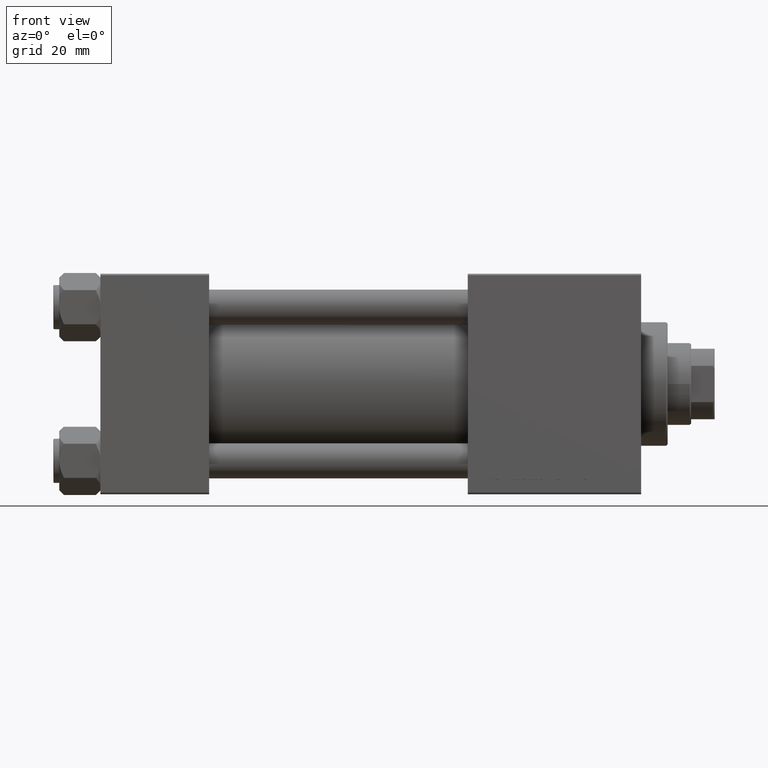
[diagram: clean part render]
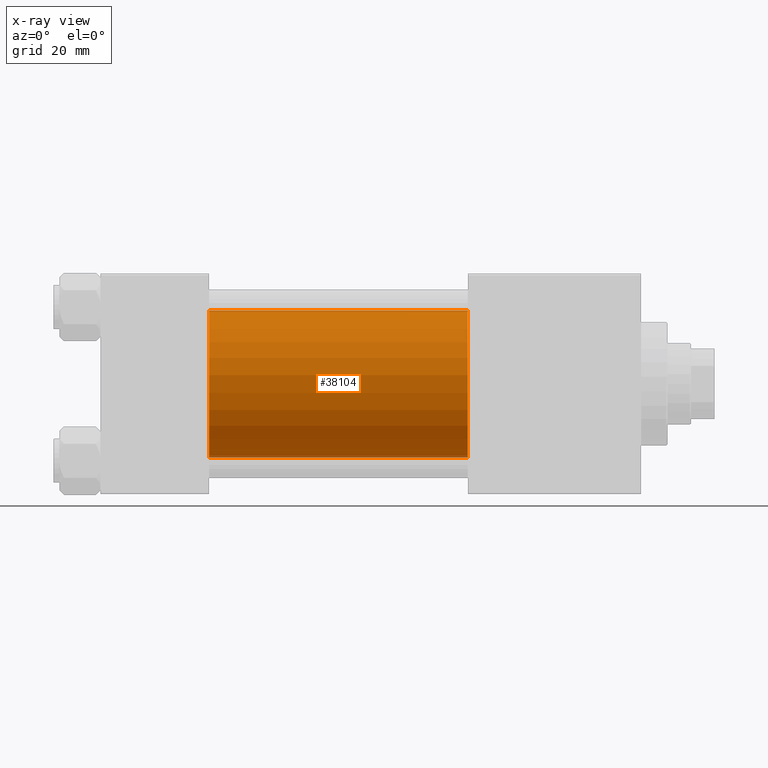
[diagram: x-ray — body ghosted, one internal face saturated and labeled with its STEP entity id]
A machine part, front view, then the same camera in x-ray: the body is ghosted and one INTERNAL B-rep face — a face not visible from any outside direction — is saturated and labeled: STEP entity #38104.
In plain terms, the highlighted cylindrical surface (partial cylindrical patch) has radius 25 mm, axis along (-1, -0, -0).
Its self-contained STEP definition (entity closure, byte-faithful):
#348 = CARTESIAN_POINT ( 'NONE',  ( 125.0000000000000000, -2.602085213965210642E-15, 25.00000000000000000 ) ) ;
#524 = DIRECTION ( 'NONE',  ( 1.000000000000000000, 0.000000000000000000, 0.000000000000000000 ) ) ;
#2105 = DIRECTION ( 'NONE',  ( -1.000000000000000000, -0.000000000000000000, -0.000000000000000000 ) ) ;
#2998 = VERTEX_POINT ( 'NONE', #30950 ) ;
#6500 = EDGE_LOOP ( 'NONE', ( #26371, #19957, #17551, #9782 ) ) ;
#7083 = CYLINDRICAL_SURFACE ( 'NONE', #28800, 25.00000000000000000 ) ;
#7108 = EDGE_CURVE ( 'NONE', #2998, #12870, #16191, .T. ) ;
#8009 = DIRECTION ( 'NONE',  ( 0.000000000000000000, 0.000000000000000000, -1.000000000000000000 ) ) ;
#9782 = ORIENTED_EDGE ( 'NONE', *, *, #40758, .F. ) ;
#12762 = VECTOR ( 'NONE', #2105, 1000.000000000000000 ) ;
#12870 = VERTEX_POINT ( 'NONE', #39103 ) ;
#15645 = CARTESIAN_POINT ( 'NONE',  ( 37.00000000000000000, -2.602085213965210642E-15, 0.000000000000000000 ) ) ;
#15668 = CARTESIAN_POINT ( 'NONE',  ( 37.00000000000000000, -2.602085213965210642E-15, 25.00000000000000000 ) ) ;
#16191 = LINE ( 'NONE', #34719, #30449 ) ;
#17551 = ORIENTED_EDGE ( 'NONE', *, *, #44184, .F. ) ;
#17769 = CARTESIAN_POINT ( 'NONE',  ( 125.0000000000000000, -2.602085213965210642E-15, 0.000000000000000000 ) ) ;
#18790 = DIRECTION ( 'NONE',  ( -1.000000000000000000, -0.000000000000000000, -0.000000000000000000 ) ) ;
#19846 = AXIS2_PLACEMENT_3D ( 'NONE', #50025, #524, #27693 ) ;
#19957 = ORIENTED_EDGE ( 'NONE', *, *, #7108, .T. ) ;
#25721 = AXIS2_PLACEMENT_3D ( 'NONE', #15645, #31124, #8009 ) ;
#26371 = ORIENTED_EDGE ( 'NONE', *, *, #37193, .T. ) ;
#27693 = DIRECTION ( 'NONE',  ( 0.000000000000000000, 0.000000000000000000, -1.000000000000000000 ) ) ;
#28800 = AXIS2_PLACEMENT_3D ( 'NONE', #17769, #18790, #48724 ) ;
#28801 = LINE ( 'NONE', #40456, #12762 ) ;
#30449 = VECTOR ( 'NONE', #43085, 1000.000000000000000 ) ;
#30950 = CARTESIAN_POINT ( 'NONE',  ( 125.0000000000000000, 4.595317839031724996E-16, -25.00000000000000000 ) ) ;
#31031 = VERTEX_POINT ( 'NONE', #15668 ) ;
#31124 = DIRECTION ( 'NONE',  ( 1.000000000000000000, 0.000000000000000000, 0.000000000000000000 ) ) ;
#34719 = CARTESIAN_POINT ( 'NONE',  ( 125.0000000000000000, 4.595317839031724996E-16, -25.00000000000000000 ) ) ;
#37193 = EDGE_CURVE ( 'NONE', #44728, #2998, #41699, .T. ) ;
#38104 = ADVANCED_FACE ( 'NONE', ( #41856 ), #7083, .F. ) ;
#39103 = CARTESIAN_POINT ( 'NONE',  ( 37.00000000000000000, 4.595317839031724996E-16, -25.00000000000000000 ) ) ;
#40456 = CARTESIAN_POINT ( 'NONE',  ( 125.0000000000000000, -2.602085213965210642E-15, 25.00000000000000000 ) ) ;
#40758 = EDGE_CURVE ( 'NONE', #44728, #31031, #28801, .T. ) ;
#41699 = CIRCLE ( 'NONE', #19846, 25.00000000000000000 ) ;
#41856 = FACE_OUTER_BOUND ( 'NONE', #6500, .T. ) ;
#43085 = DIRECTION ( 'NONE',  ( -1.000000000000000000, -0.000000000000000000, -0.000000000000000000 ) ) ;
#44184 = EDGE_CURVE ( 'NONE', #31031, #12870, #47606, .T. ) ;
#44728 = VERTEX_POINT ( 'NONE', #348 ) ;
#47606 = CIRCLE ( 'NONE', #25721, 25.00000000000000000 ) ;
#48724 = DIRECTION ( 'NONE',  ( 0.000000000000000000, 0.000000000000000000, 1.000000000000000000 ) ) ;
#50025 = CARTESIAN_POINT ( 'NONE',  ( 125.0000000000000000, -2.602085213965210642E-15, 0.000000000000000000 ) ) ;